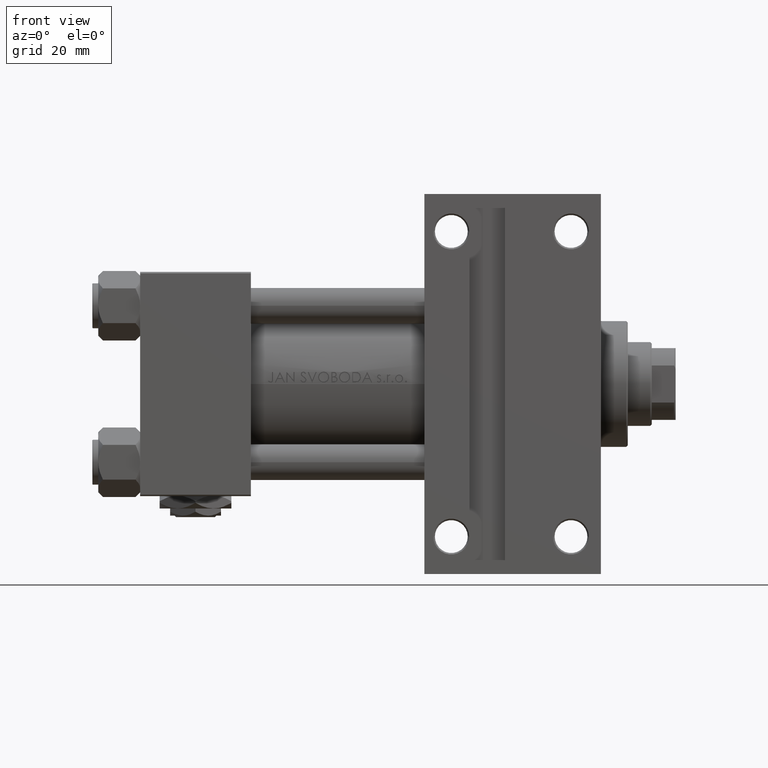
[diagram: clean part render]
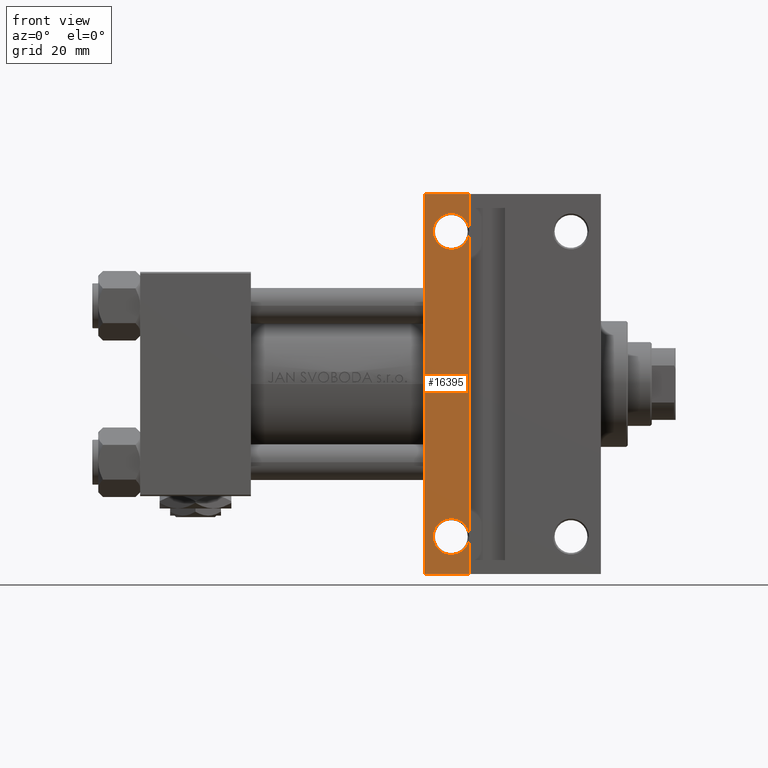
[diagram: same view with one face highlighted and labeled with its STEP entity id]
A machine part, front view. The second image highlights one B-rep face of the part: STEP entity #16395.
In plain terms, the highlighted planar face has unit normal (0, -1, 0).
Its self-contained STEP definition (entity closure, byte-faithful):
#1252 = EDGE_CURVE ( 'NONE', #11232, #25004, #35991, .T. ) ;
#2747 = DIRECTION ( 'NONE',  ( 0.000000000000000000, -1.000000000000000000, 0.000000000000000000 ) ) ;
#3345 = CARTESIAN_POINT ( 'NONE',  ( 109.9994999999999692, 50.99999999999999289, -37.50000000000000000 ) ) ;
#3408 = DIRECTION ( 'NONE',  ( -0.000000000000000000, -0.000000000000000000, 1.000000000000000000 ) ) ;
#3467 = EDGE_CURVE ( 'NONE', #12671, #37456, #5970, .T. ) ;
#5756 = ORIENTED_EDGE ( 'NONE', *, *, #43912, .T. ) ;
#5970 = LINE ( 'NONE', #20323, #37570 ) ;
#6276 = EDGE_LOOP ( 'NONE', ( #6968, #46815 ) ) ;
#6968 = ORIENTED_EDGE ( 'NONE', *, *, #21612, .T. ) ;
#7459 = AXIS2_PLACEMENT_3D ( 'NONE', #7913, #3408, #15202 ) ;
#7556 = DIRECTION ( 'NONE',  ( -1.000000000000000000, 0.000000000000000000, 0.000000000000000000 ) ) ;
#7818 = ORIENTED_EDGE ( 'NONE', *, *, #1252, .T. ) ;
#7913 = CARTESIAN_POINT ( 'NONE',  ( 103.9999999999999574, -50.99999999999999289, -37.50000000000000000 ) ) ;
#8313 = DIRECTION ( 'NONE',  ( -0.000000000000000000, -0.000000000000000000, 1.000000000000000000 ) ) ;
#9260 = CARTESIAN_POINT ( 'NONE',  ( 95.00000000000000000, 63.50000000000000000, -37.50000000000000000 ) ) ;
#9860 = DIRECTION ( 'NONE',  ( -1.000000000000000000, 0.000000000000000000, 0.000000000000000000 ) ) ;
#10458 = VERTEX_POINT ( 'NONE', #16922 ) ;
#11232 = VERTEX_POINT ( 'NONE', #25395 ) ;
#12041 = VECTOR ( 'NONE', #25471, 1000.000000000000000 ) ;
#12671 = VERTEX_POINT ( 'NONE', #47145 ) ;
#13874 = CIRCLE ( 'NONE', #7459, 5.999500000000018929 ) ;
#14590 = AXIS2_PLACEMENT_3D ( 'NONE', #35540, #20455, #47073 ) ;
#15202 = DIRECTION ( 'NONE',  ( -1.000000000000000000, 0.000000000000000000, 0.000000000000000000 ) ) ;
#15747 = CARTESIAN_POINT ( 'NONE',  ( 103.9999999999999574, 50.99999999999999289, -37.50000000000000000 ) ) ;
#16395 = ADVANCED_FACE ( 'NONE', ( #23727, #39060, #19955 ), #35282, .T. ) ;
#16922 = CARTESIAN_POINT ( 'NONE',  ( 98.00049999999993133, -50.99999999999999289, -37.50000000000000000 ) ) ;
#17111 = CARTESIAN_POINT ( 'NONE',  ( 94.99999999999998579, -63.50000000000000000, -37.50000000000000000 ) ) ;
#18135 = EDGE_CURVE ( 'NONE', #36096, #10458, #13874, .T. ) ;
#18616 = DIRECTION ( 'NONE',  ( -0.000000000000000000, -0.000000000000000000, 1.000000000000000000 ) ) ;
#18622 = CARTESIAN_POINT ( 'NONE',  ( 95.00000000000000000, 63.50000000000000000, -37.50000000000000000 ) ) ;
#18907 = AXIS2_PLACEMENT_3D ( 'NONE', #15747, #19774, #49415 ) ;
#19595 = EDGE_CURVE ( 'NONE', #41266, #37456, #22136, .T. ) ;
#19774 = DIRECTION ( 'NONE',  ( -0.000000000000000000, -0.000000000000000000, 1.000000000000000000 ) ) ;
#19955 = FACE_BOUND ( 'NONE', #6276, .T. ) ;
#20323 = CARTESIAN_POINT ( 'NONE',  ( 110.0000000000000000, -63.50000000000000000, -37.50000000000000000 ) ) ;
#20455 = DIRECTION ( 'NONE',  ( 0.000000000000000000, 0.000000000000000000, -1.000000000000000000 ) ) ;
#21612 = EDGE_CURVE ( 'NONE', #10458, #36096, #48480, .T. ) ;
#22136 = LINE ( 'NONE', #18622, #48416 ) ;
#22576 = ORIENTED_EDGE ( 'NONE', *, *, #19595, .T. ) ;
#22638 = EDGE_CURVE ( 'NONE', #25004, #11232, #39008, .T. ) ;
#23355 = ORIENTED_EDGE ( 'NONE', *, *, #22638, .T. ) ;
#23727 = FACE_OUTER_BOUND ( 'NONE', #45572, .T. ) ;
#25004 = VERTEX_POINT ( 'NONE', #3345 ) ;
#25395 = CARTESIAN_POINT ( 'NONE',  ( 98.00049999999993133, 50.99999999999999289, -37.50000000000000000 ) ) ;
#25471 = DIRECTION ( 'NONE',  ( -1.000000000000000000, 4.704334850106596780E-16, -0.000000000000000000 ) ) ;
#26836 = AXIS2_PLACEMENT_3D ( 'NONE', #42732, #8313, #7556 ) ;
#26998 = VECTOR ( 'NONE', #2747, 1000.000000000000000 ) ;
#29124 = ORIENTED_EDGE ( 'NONE', *, *, #41085, .F. ) ;
#29233 = ORIENTED_EDGE ( 'NONE', *, *, #3467, .F. ) ;
#29500 = CARTESIAN_POINT ( 'NONE',  ( 94.99999999999998579, -63.50000000000000000, -37.50000000000000000 ) ) ;
#29607 = CARTESIAN_POINT ( 'NONE',  ( 110.0000000000000000, 63.50000000000000000, -37.50000000000000000 ) ) ;
#32129 = DIRECTION ( 'NONE',  ( 0.000000000000000000, 1.000000000000000000, 0.000000000000000000 ) ) ;
#33167 = CARTESIAN_POINT ( 'NONE',  ( 95.00000000000000000, 37.50000000000000000, -37.50000000000000000 ) ) ;
#35282 = PLANE ( 'NONE',  #14590 ) ;
#35540 = CARTESIAN_POINT ( 'NONE',  ( 154.0000000000000000, 37.50000000000000000, -37.50000000000000000 ) ) ;
#35991 = CIRCLE ( 'NONE', #45617, 5.999500000000018929 ) ;
#36096 = VERTEX_POINT ( 'NONE', #36900 ) ;
#36900 = CARTESIAN_POINT ( 'NONE',  ( 109.9994999999999692, -50.99999999999999289, -37.50000000000000000 ) ) ;
#37456 = VERTEX_POINT ( 'NONE', #29607 ) ;
#37543 = EDGE_LOOP ( 'NONE', ( #7818, #23355 ) ) ;
#37570 = VECTOR ( 'NONE', #32129, 1000.000000000000000 ) ;
#37679 = LINE ( 'NONE', #33167, #26998 ) ;
#39008 = CIRCLE ( 'NONE', #18907, 5.999500000000018929 ) ;
#39060 = FACE_BOUND ( 'NONE', #37543, .T. ) ;
#40734 = CARTESIAN_POINT ( 'NONE',  ( 103.9999999999999574, 50.99999999999999289, -37.50000000000000000 ) ) ;
#41085 = EDGE_CURVE ( 'NONE', #41266, #48235, #37679, .T. ) ;
#41266 = VERTEX_POINT ( 'NONE', #9260 ) ;
#42732 = CARTESIAN_POINT ( 'NONE',  ( 103.9999999999999574, -50.99999999999999289, -37.50000000000000000 ) ) ;
#43912 = EDGE_CURVE ( 'NONE', #12671, #48235, #44551, .T. ) ;
#44551 = LINE ( 'NONE', #29500, #12041 ) ;
#45572 = EDGE_LOOP ( 'NONE', ( #29233, #5756, #29124, #22576 ) ) ;
#45617 = AXIS2_PLACEMENT_3D ( 'NONE', #40734, #18616, #9860 ) ;
#46815 = ORIENTED_EDGE ( 'NONE', *, *, #18135, .T. ) ;
#47073 = DIRECTION ( 'NONE',  ( -1.000000000000000000, 0.000000000000000000, -0.000000000000000000 ) ) ;
#47145 = CARTESIAN_POINT ( 'NONE',  ( 110.0000000000000000, -63.50000000000000000, -37.50000000000000000 ) ) ;
#48235 = VERTEX_POINT ( 'NONE', #17111 ) ;
#48416 = VECTOR ( 'NONE', #49264, 1000.000000000000000 ) ;
#48480 = CIRCLE ( 'NONE', #26836, 5.999500000000018929 ) ;
#49264 = DIRECTION ( 'NONE',  ( 1.000000000000000000, 0.000000000000000000, 0.000000000000000000 ) ) ;
#49415 = DIRECTION ( 'NONE',  ( -1.000000000000000000, 0.000000000000000000, 0.000000000000000000 ) ) ;